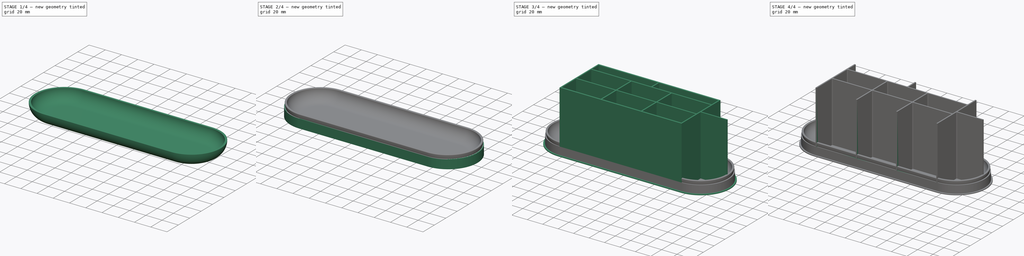
[diagram: build sequence overview — one tinted view per stage of 4, left to right]
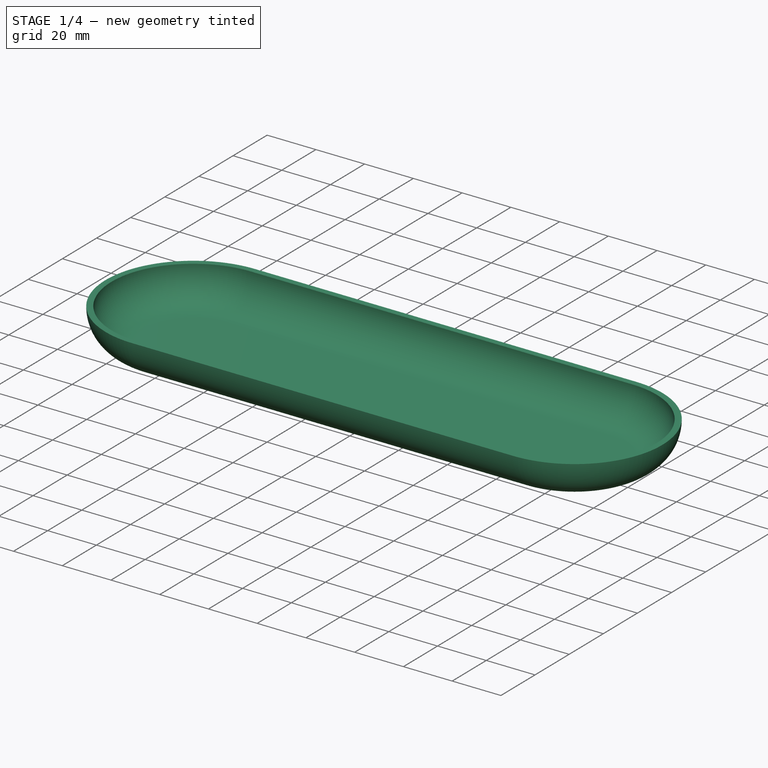
[diagram: stage 1 of 4 — iso view after this stage's code; geometry added in this stage tinted green]
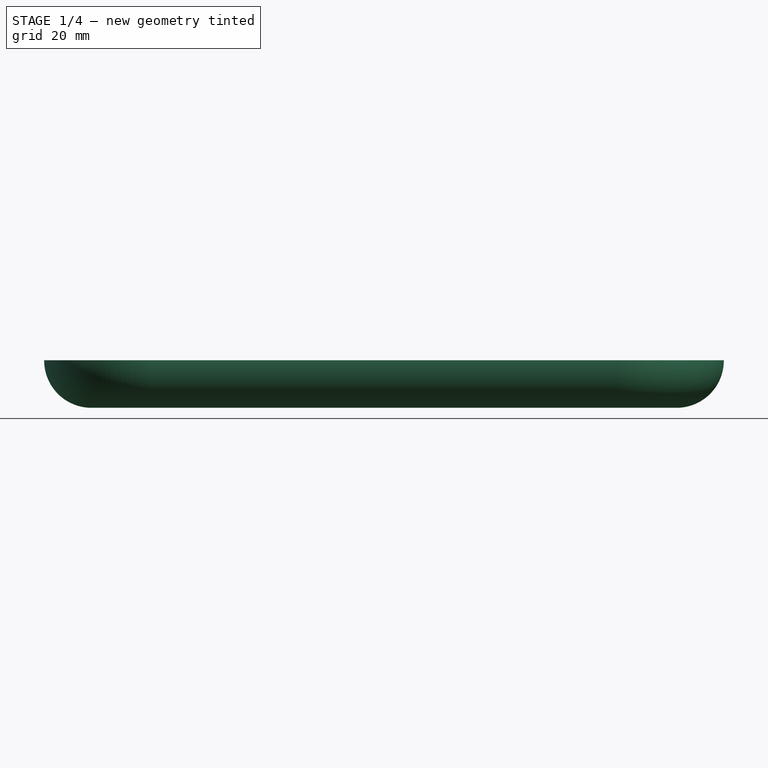
[diagram: stage 1 of 4 — front view after this stage's code; geometry added in this stage tinted green]
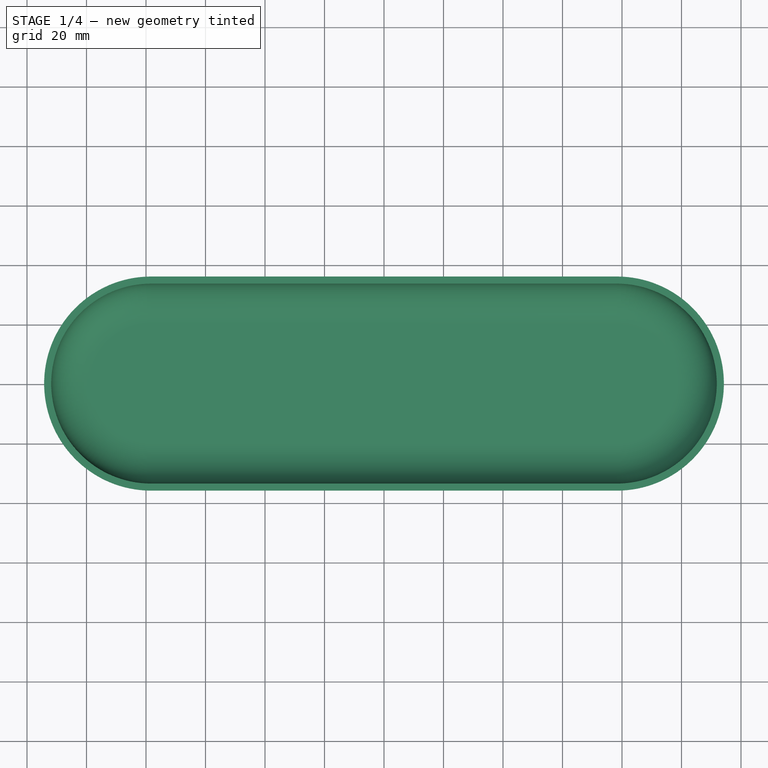
[diagram: stage 1 of 4 — top view after this stage's code; geometry added in this stage tinted green]
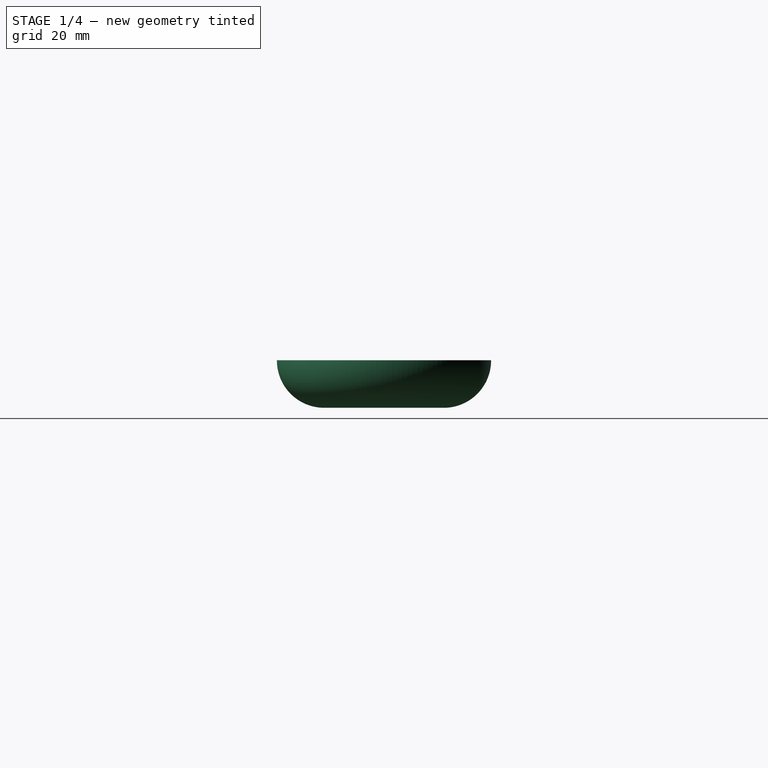
[diagram: stage 1 of 4 — right view after this stage's code; geometry added in this stage tinted green]
FCSTD DOCUMENT  (FreeCAD 1.1R42523 (Git))
Label: IKEA Skadis basket insert
License: All rights reserved
objects: Sketcher::SketchObject×8, PartDesign::Pad×5, PartDesign::Fillet×4, PartDesign::Pocket×3, App::Point×2, PartDesign::Body×2, App::VarSet×1, PartDesign::Thickness×1
note: 57 computed .brp shape members not serialized (recipe doc carries the construction recipe); baked Part::Feature solids carry a one-line shape summary decoded from their .brp

FEATURE [PartDesign::Body] Body  label="insert"
  AllowCompound = true
  Group = -> [Sketch,Sketch001,Pad,Pad001,Sketch002,Pad002,VarSet,Sketch003,Pad003,Sketch004,Pocket,Sketch005,Pocket001,Fillet,Fillet001]
  Origin = -> Origin
  Tip = -> Fillet001
FEATURE [App::Point] Origin003
  Role = Origin
FEATURE [Sketcher::SketchObject] Sketch006
  ArcFitTolerance = 1e-06
  AttachmentSupport = -> [Origin002]
  ExternalTypes = [0]
  FullyConstrained = true
  MakeInternals = false
  MapMode = 5
  sketch-geometry (5):
    g0: ArcOfCircle CenterX=-78.25 CenterY=-6e-16 CenterZ=0 NormalX=0 NormalY=0 NormalZ=1 AngleXU=0 Radius=36 StartAngle=1.5708 EndAngle=4.71239
    g1: ArcOfCircle CenterX=78.25 CenterY=6e-16 CenterZ=0 NormalX=0 NormalY=0 NormalZ=1 AngleXU=0 Radius=36 StartAngle=4.71239 EndAngle=7.85398
    g2: LineSegment StartX=-78.25 StartY=36 StartZ=0 EndX=78.25 EndY=36 EndZ=0
    g3: LineSegment StartX=-78.25 StartY=-36 StartZ=0 EndX=78.25 EndY=-36 EndZ=0
    g4: LineSegment [constr] StartX=-114.25 StartY=0 StartZ=0 EndX=114.25 EndY=0 EndZ=0
  constraints (13):
    c: Tangent(g0,g2) = 1.5708
    c: Tangent(g0,g3) = -1.5708
    c: Tangent(g1,g2) = 1.5708
    c: Tangent(g1,g3) = -1.5708
    c: Equal(g0,g1)
    c: Horizontal(g3)
    c: Diameter(g1) = 72
    c: PointOnObject(g4,g0)
    c: PointOnObject(g4,g1)
    c: Horizontal(g4)
    c: PointOnObject(g-1,g4)
    c: Symmetric(g0,g1,g-1)
    c: DistanceX(g4,g4) = 228.5
FEATURE [PartDesign::Pad] Pad004
  Direction = (0,0,1)
  Length = 16
  Length2 = 10
  Profile = -> Sketch006
  ReferenceAxis = -> Sketch006 [N_Axis]
  Refine = true
  Suppressed = false
  Type = 0
FEATURE [PartDesign::Fillet] Fillet002
  Base = -> Pad004 [Edge6]
  BaseFeature = -> Pad004
  Radius = 15.9
  Refine = true
  SupportTransform = false
  Suppressed = false
  UseAllEdges = false
FEATURE [PartDesign::Thickness] Thickness
  Base = -> Fillet002 [Face4]
  BaseFeature = -> Fillet002
  Intersection = false
  Join = 0
  Mode = 0
  Refine = true
  Reversed = true
  SupportTransform = false
  Suppressed = false
  Value = 2.4
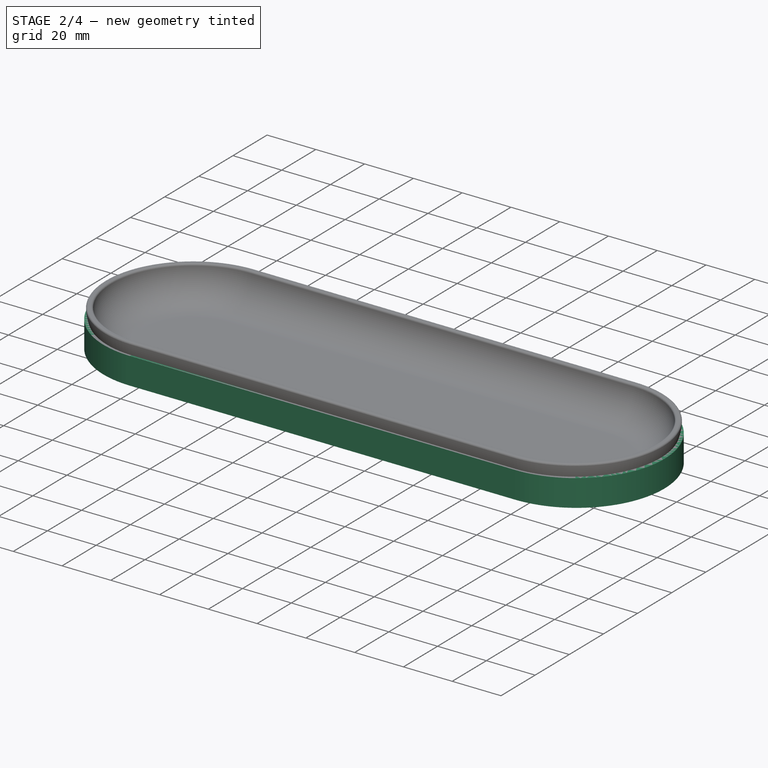
[diagram: stage 2 of 4 — iso view after this stage's code; geometry added in this stage tinted green]
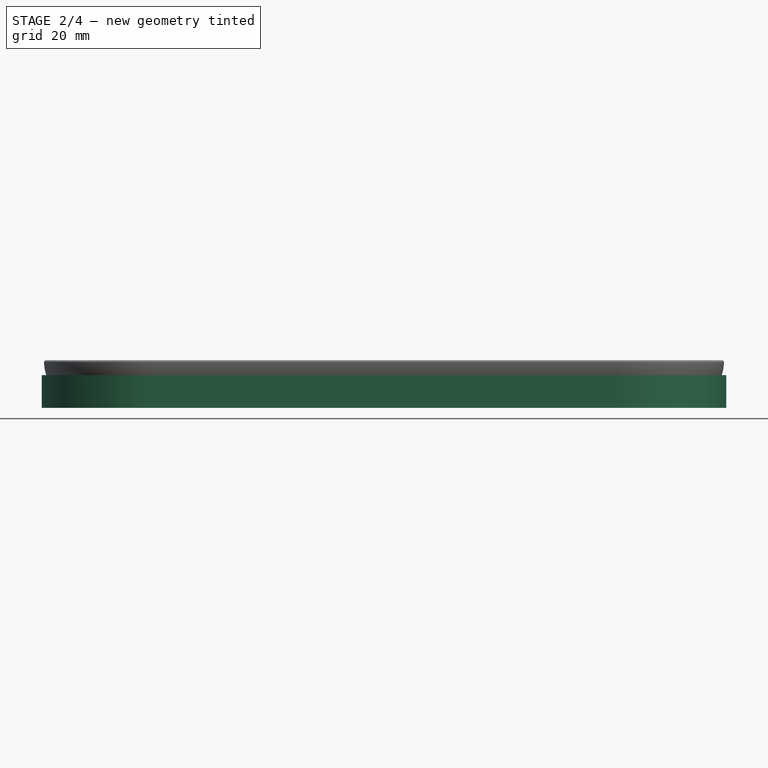
[diagram: stage 2 of 4 — front view after this stage's code; geometry added in this stage tinted green]
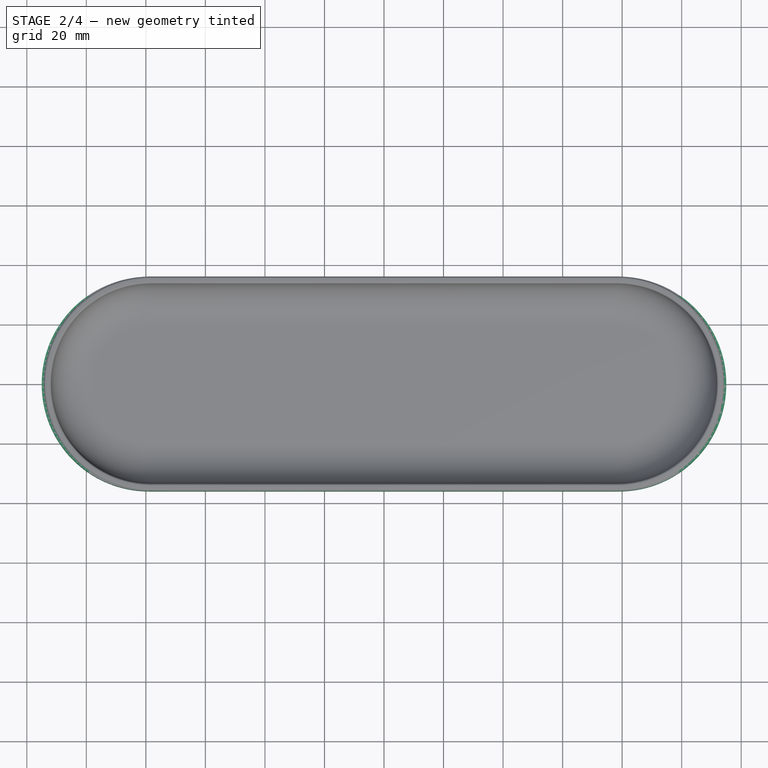
[diagram: stage 2 of 4 — top view after this stage's code; geometry added in this stage tinted green]
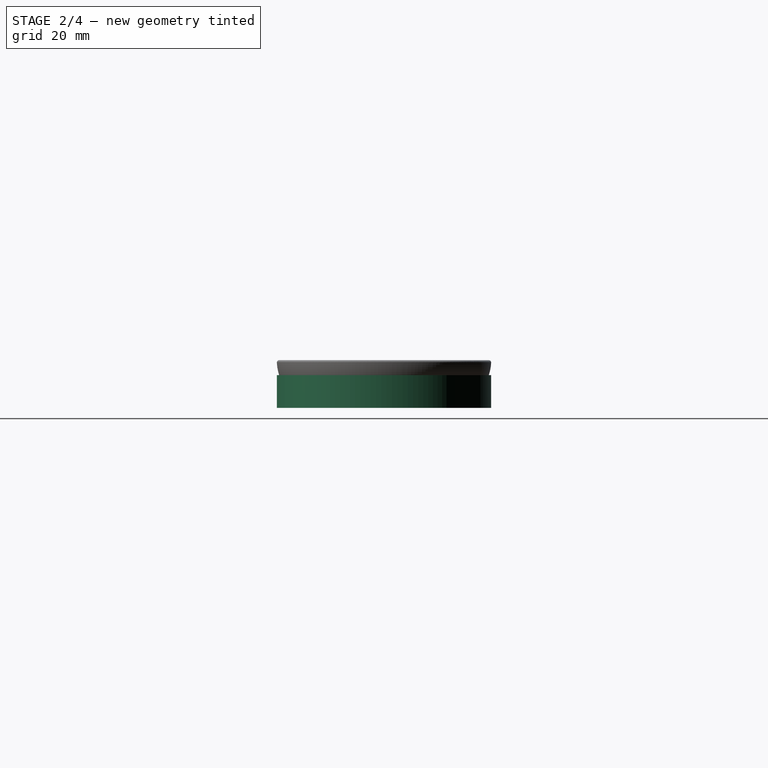
[diagram: stage 2 of 4 — right view after this stage's code; geometry added in this stage tinted green]
FEATURE [App::Point] Origin001
  Role = Origin
FEATURE [Sketcher::SketchObject] Sketch
  ArcFitTolerance = 1e-06
  AttachmentSupport = -> [Origin]
  ExternalTypes = [0]
  FullyConstrained = true
  MakeInternals = false
  MapMode = 5
  sketch-geometry (9):
    g0: ArcOfCircle CenterX=-79 CenterY=-1e-15 CenterZ=0 NormalX=0 NormalY=0 NormalZ=1 AngleXU=0 Radius=36 StartAngle=1.5708 EndAngle=4.71239
    g1: ArcOfCircle CenterX=79 CenterY=1e-15 CenterZ=0 NormalX=0 NormalY=0 NormalZ=1 AngleXU=0 Radius=36 StartAngle=4.71239 EndAngle=7.85398
    g2: LineSegment StartX=-79 StartY=36 StartZ=0 EndX=79 EndY=36 EndZ=0
    g3: LineSegment StartX=-79 StartY=-36 StartZ=0 EndX=79 EndY=-36 EndZ=0
    g4: LineSegment [constr] StartX=-115 StartY=0 StartZ=0 EndX=115 EndY=0 EndZ=0
    g5: LineSegment StartX=-79 StartY=-34 StartZ=0 EndX=79 EndY=-34 EndZ=0
    g6: ArcOfCircle CenterX=79 CenterY=1e-15 CenterZ=0 NormalX=0 NormalY=0 NormalZ=1 AngleXU=0 Radius=34 StartAngle=4.71239 EndAngle=7.85398
    g7: LineSegment StartX=-79 StartY=34 StartZ=0 EndX=79 EndY=34 EndZ=0
    g8: ArcOfCircle CenterX=-79 CenterY=-1e-15 CenterZ=0 NormalX=0 NormalY=0 NormalZ=1 AngleXU=0 Radius=34 StartAngle=1.5708 EndAngle=4.71239
  constraints (21):
    c: Tangent(g0,g2) = 1.5708
    c: Tangent(g0,g3) = -1.5708
    c: Tangent(g1,g2) = 1.5708
    c: Tangent(g1,g3) = -1.5708
    c: Equal(g0,g1)
    c: Horizontal(g3)
    c: Symmetric(g1,g0,g-1)
    c: Diameter(g1) = 72
    c: PointOnObject(g4,g0)
    c: PointOnObject(g4,g1)
    c: Horizontal(g4)
    c: PointOnObject(g-1,g4)
    c: DistanceX(g4,g4) = 230
    c: Tangent(g5,g6) = -1.5708
    c: Tangent(g5,g8) = -1.5708
    c: Tangent(g6,g7) = 1.5708
    c: Tangent(g7,g8) = 1.5708
    c: Horizontal(g7)
    c: Diameter(g6) = 68
    c: Coincident(g6,g1)
    c: Coincident(g0,g8)
FEATURE [PartDesign::Pad] Pad
  Direction = (0,0,1)
  Length = 11
  Length2 = 10
  Profile = -> Sketch
  ReferenceAxis = -> Sketch [N_Axis]
  Refine = true
  Suppressed = false
  Type = 0
  UseCustomVector = true
FEATURE [Sketcher::SketchObject] Sketch007
  ArcFitTolerance = 1e-06
  AttachmentSupport = -> [Origin002]
  ExternalTypes = [0]
  FullyConstrained = true
  MakeInternals = false
  MapMode = 5
  Placement = pos=(0,0,0) rot=(0.57735,0.57735,0.57735;2.0944rad)
  sketch-geometry (5):
    g0: LineSegment StartX=-50 StartY=0.5 StartZ=0 EndX=-50 EndY=-0.5 EndZ=0
    g1: LineSegment StartX=-50 StartY=-0.5 StartZ=0 EndX=50 EndY=-0.5 EndZ=0
    g2: LineSegment StartX=50 StartY=-0.5 StartZ=0 EndX=50 EndY=0.5 EndZ=0
    g3: LineSegment StartX=50 StartY=0.5 StartZ=0 EndX=-50 EndY=0.5 EndZ=0
    g4: GeomPoint [constr] X=0 Y=0 Z=0
  constraints (12):
    c: Coincident(g0,g1)
    c: Coincident(g1,g2)
    c: Coincident(g2,g3)
    c: Coincident(g3,g0)
    c: Vertical(g0)
    c: Vertical(g2)
    c: Horizontal(g1)
    c: Horizontal(g3)
    c: Symmetric(g2,g0,g4)
    c: Coincident(g4,g-1)
    c: DistanceY(g2,g2) = 1
    c: DistanceX(g1,g1) = 100
FEATURE [PartDesign::Pocket] Pocket002
  BaseFeature = -> Thickness
  Direction = (-1,0,0)
  Length = 5
  Length2 = 5
  Midplane = true
  Profile = -> Sketch007
  ReferenceAxis = -> Sketch007 [N_Axis]
  Refine = true
  Suppressed = false
  Type = 1
FEATURE [PartDesign::Fillet] Fillet003
  Base = -> Pocket002 [Face4]
  BaseFeature = -> Pocket002
  Radius = 0.75
  Refine = true
  SupportTransform = false
  Suppressed = false
  UseAllEdges = false
FEATURE [PartDesign::Body] Body001  label="bottom"
  AllowCompound = true
  Group = -> [Sketch006,Pad004,Fillet002,Thickness,Sketch007,Pocket002,Fillet003]
  Origin = -> Origin002
  Tip = -> Fillet003
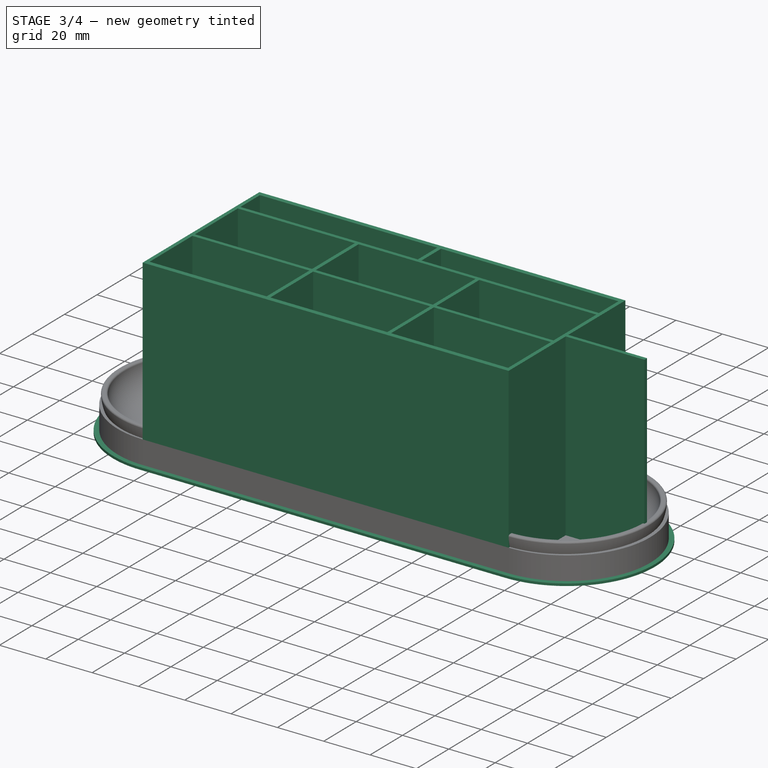
[diagram: stage 3 of 4 — iso view after this stage's code; geometry added in this stage tinted green]
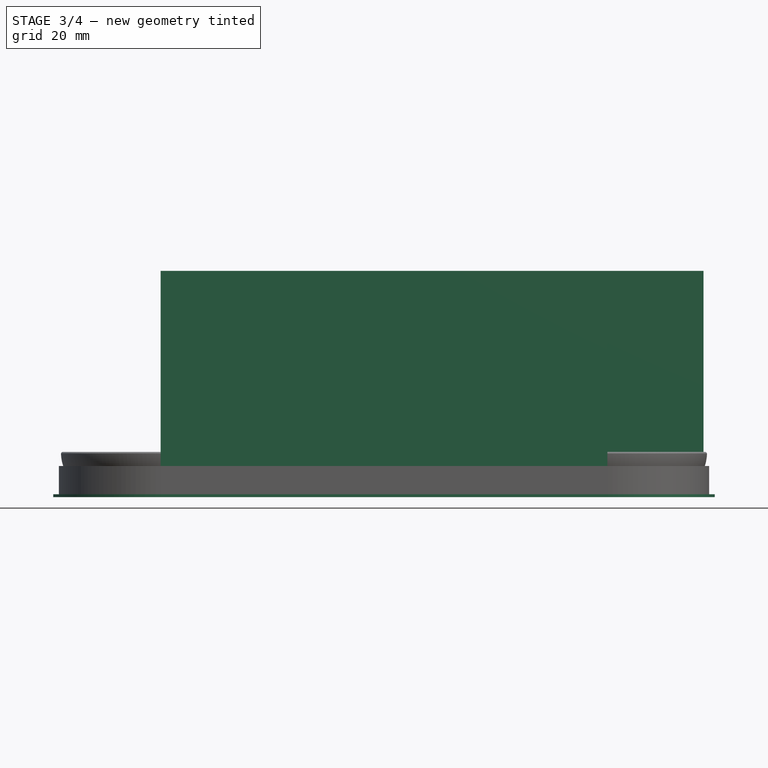
[diagram: stage 3 of 4 — front view after this stage's code; geometry added in this stage tinted green]
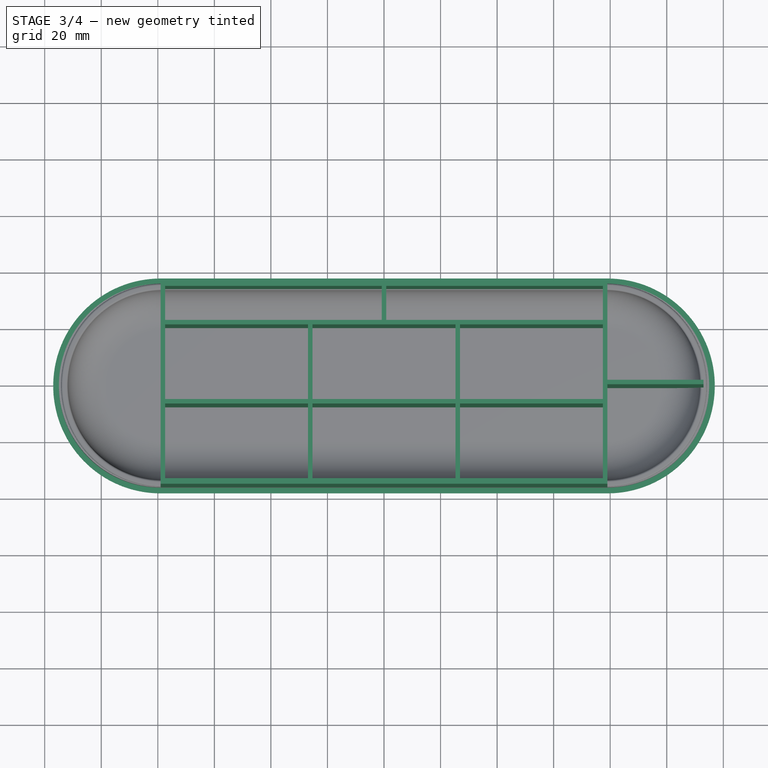
[diagram: stage 3 of 4 — top view after this stage's code; geometry added in this stage tinted green]
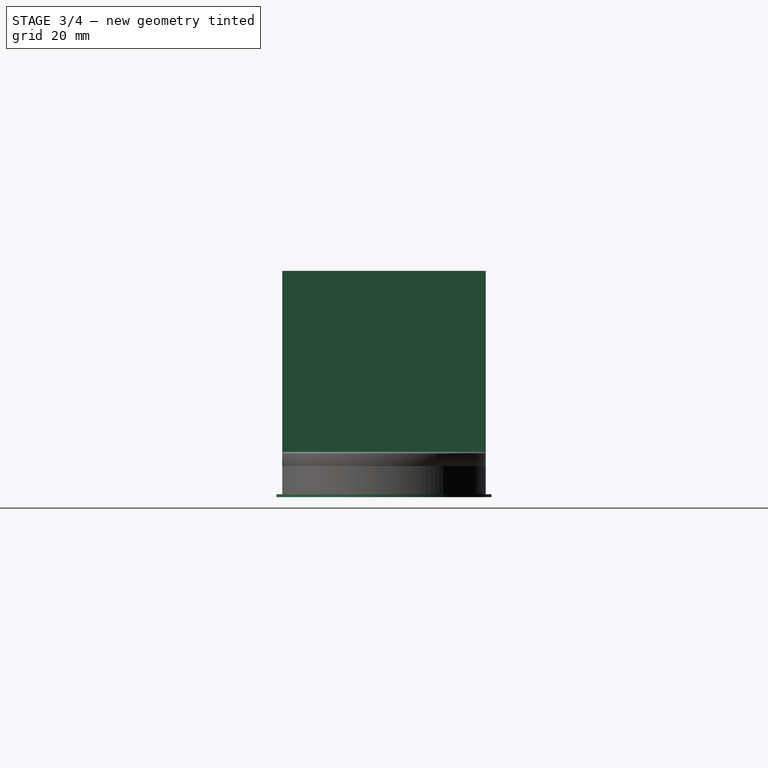
[diagram: stage 3 of 4 — right view after this stage's code; geometry added in this stage tinted green]
FEATURE [Sketcher::SketchObject] Sketch001
  ArcFitTolerance = 1e-06
  AttachmentSupport = -> [Origin]
  ExternalGeometry = -> [Pad]
  ExternalTypes = [0,0,0,0]
  FullyConstrained = false
  MakeInternals = false
  MapMode = 5
  expr: Constraints[2] = Sketch.Constraints[12]
  sketch-geometry (5):
    g0: LineSegment [constr] StartX=-115 StartY=0 StartZ=0 EndX=115 EndY=0 EndZ=0
    g1: ArcOfCircle CenterX=-79 CenterY=-1e-15 CenterZ=0 NormalX=0 NormalY=0 NormalZ=1 AngleXU=0 Radius=38 StartAngle=1.5708 EndAngle=4.71239
    g2: LineSegment StartX=-79 StartY=-38 StartZ=0 EndX=79 EndY=-38 EndZ=0
    g3: ArcOfCircle CenterX=79 CenterY=1e-15 CenterZ=0 NormalX=0 NormalY=0 NormalZ=1 AngleXU=0 Radius=38 StartAngle=4.71239 EndAngle=7.85398
    g4: LineSegment StartX=-79 StartY=38 StartZ=0 EndX=79 EndY=38 EndZ=0
  constraints (11):
    c: Horizontal(g0)
    c: PointOnObject(g-1,g0)
    c: DistanceX(g0,g0) = 230
    c: Tangent(g1,g2) = -1.5708
    c: Tangent(g1,g4) = 1.5708
    c: Tangent(g2,g3) = -1.5708
    c: Tangent(g3,g4) = 1.5708
    c: Horizontal(g4)
    c: Diameter(g3) = 76
    c: Coincident(g3,g-6)
    c: Coincident(g1,g-4)
FEATURE [PartDesign::Pad] Pad001
  BaseFeature = -> Pad
  Direction = (0,0,1)
  Length = 1
  Length2 = 10
  Profile = -> Sketch001
  ReferenceAxis = -> Sketch001 [N_Axis]
  Refine = true
  Suppressed = false
  Type = 0
FEATURE [Sketcher::SketchObject] Sketch002
  ArcFitTolerance = 1e-06
  AttachmentSupport = -> [Origin]
  ExternalGeometry = -> [Sketch]
  ExternalTypes = [0,0,0]
  FullyConstrained = true
  MakeInternals = false
  MapMode = 5
  sketch-geometry (4):
    g0: LineSegment StartX=-79 StartY=-36 StartZ=0 EndX=79 EndY=-36 EndZ=0
    g1: LineSegment StartX=79 StartY=36 StartZ=0 EndX=-79 EndY=36 EndZ=0
    g2: LineSegment StartX=-79 StartY=36 StartZ=0 EndX=-79 EndY=-36 EndZ=0
    g3: LineSegment StartX=79 StartY=36 StartZ=0 EndX=79 EndY=-36 EndZ=0
  constraints (8):
    c: Coincident(g1,g-3)
    c: Coincident(g1,g-3)
    c: Coincident(g0,g-4)
    c: Coincident(g0,g-4)
    c: Coincident(g2,g1)
    c: Coincident(g2,g0)
    c: Coincident(g3,g1)
    c: Coincident(g3,g0)
FEATURE [PartDesign::Pad] Pad002
  BaseFeature = -> Pad001
  Direction = (0,0,1)
  Length = 80
  Length2 = 10
  Profile = -> Sketch002
  ReferenceAxis = -> Sketch002 [N_Axis]
  Refine = true
  Suppressed = false
  Type = 0
  expr: Length = <<dim>>.height
FEATURE [App::VarSet] VarSet  label="dim"
  height = 80
  wall = 1.6
FEATURE [Sketcher::SketchObject] Sketch003
  ArcFitTolerance = 1e-06
  AttachmentSupport = -> [Origin]
  ExternalGeometry = -> [Pad002,Pad]
  ExternalTypes = [0,0,0,0]
  FullyConstrained = false
  MakeInternals = false
  MapMode = 5
  expr: Constraints[6] = <<dim>>.wall
  sketch-geometry (4):
    g0: LineSegment StartX=79 StartY=0.8 StartZ=0 EndX=79 EndY=-0.8 EndZ=0
    g1: LineSegment StartX=79 StartY=-0.8 StartZ=0 EndX=113 EndY=-0.8 EndZ=0
    g2: LineSegment StartX=113 StartY=-0.8 StartZ=0 EndX=113 EndY=0.8 EndZ=0
    g3: LineSegment StartX=113 StartY=0.8 StartZ=0 EndX=79 EndY=0.8 EndZ=0
  constraints (7):
    c: Vertical(g0)
    c: Vertical(g2)
    c: Horizontal(g1)
    c: Horizontal(g3)
    c: Tangent(g2,g-4)
    c: Symmetric(g0,g0,g-4)
    c: DistanceY(g2,g2) = 1.6
FEATURE [PartDesign::Pad] Pad003
  BaseFeature = -> Pad002
  Direction = (0,0,1)
  Length = 80
  Length2 = 10
  Profile = -> Sketch003
  ReferenceAxis = -> Sketch003 [N_Axis]
  Refine = true
  Suppressed = false
  Type = 0
  expr: Length = <<dim>>.height
FEATURE [Sketcher::SketchObject] Sketch004
  ArcFitTolerance = 1e-06
  AttachmentSupport = -> [Origin]
  ExternalGeometry = -> [Pad003,Sketch002]
  ExternalTypes = [0,0,0]
  FullyConstrained = true
  MakeInternals = false
  MapMode = 5
  expr: Constraints[100] = <<dim>>.wall
  expr: Constraints[104] = <<dim>>.wall
  expr: Constraints[105] = <<dim>>.wall
  expr: Constraints[91] = <<dim>>.wall
  sketch-geometry (37):
    g0: LineSegment StartX=-77.4 StartY=-7.6 StartZ=0 EndX=-77.4 EndY=-34 EndZ=0
    g1: LineSegment StartX=-77.4 StartY=-34 StartZ=0 EndX=-26.8667 EndY=-34 EndZ=0
    g2: LineSegment StartX=-26.8667 StartY=-34 StartZ=0 EndX=-26.8667 EndY=-7.6 EndZ=0
    g3: LineSegment StartX=-26.8667 StartY=-7.6 StartZ=0 EndX=-77.4 EndY=-7.6 EndZ=0
    g4: LineSegment StartX=-25.2667 StartY=-7.6 StartZ=0 EndX=-25.2667 EndY=-34 EndZ=0
    g5: LineSegment StartX=-25.2667 StartY=-34 StartZ=0 EndX=25.2667 EndY=-34 EndZ=0
    g6: LineSegment StartX=25.2667 StartY=-34 StartZ=0 EndX=25.2667 EndY=-7.6 EndZ=0
    g7: LineSegment StartX=25.2667 StartY=-7.6 StartZ=0 EndX=-25.2667 EndY=-7.6 EndZ=0
    g8: LineSegment StartX=26.8667 StartY=-7.6 StartZ=0 EndX=26.8667 EndY=-34 EndZ=0
    g9: LineSegment StartX=26.8667 StartY=-34 StartZ=0 EndX=77.4 EndY=-34 EndZ=0
    g10: LineSegment StartX=77.4 StartY=-34 StartZ=0 EndX=77.4 EndY=-7.6 EndZ=0
    g11: LineSegment StartX=77.4 StartY=-7.6 StartZ=0 EndX=26.8667 EndY=-7.6 EndZ=0
    g12: LineSegment StartX=-77.4 StartY=20.4 StartZ=0 EndX=-77.4 EndY=-6 EndZ=0
    g13: LineSegment StartX=-77.4 StartY=-6 StartZ=0 EndX=-26.8667 EndY=-6 EndZ=0
    g14: LineSegment StartX=-26.8667 StartY=-6 StartZ=0 EndX=-26.8667 EndY=20.4 EndZ=0
    g15: LineSegment StartX=-26.8667 StartY=20.4 StartZ=0 EndX=-77.4 EndY=20.4 EndZ=0
    g16: LineSegment StartX=-25.2667 StartY=20.4 StartZ=0 EndX=-25.2667 EndY=-6 EndZ=0
    g17: LineSegment StartX=-25.2667 StartY=-6 StartZ=0 EndX=25.2667 EndY=-6 EndZ=0
    g18: LineSegment StartX=25.2667 StartY=-6 StartZ=0 EndX=25.2667 EndY=20.4 EndZ=0
    g19: LineSegment StartX=25.2667 StartY=20.4 StartZ=0 EndX=-25.2667 EndY=20.4 EndZ=0
    g20: LineSegment StartX=26.8667 StartY=20.4 StartZ=0 EndX=26.8667 EndY=-6 EndZ=0
    g21: LineSegment StartX=26.8667 StartY=-6 StartZ=0 EndX=77.4 EndY=-6 EndZ=0
    g22: LineSegment StartX=77.4 StartY=-6 StartZ=0 EndX=77.4 EndY=20.4 EndZ=0
    g23: LineSegment StartX=77.4 StartY=20.4 StartZ=0 EndX=26.8667 EndY=20.4 EndZ=0
    g24: LineSegment StartX=-77.4 StartY=34 StartZ=0 EndX=-77.4 EndY=22 EndZ=0
    g25: LineSegment StartX=-77.4 StartY=22 StartZ=0 EndX=-0.8 EndY=22 EndZ=0
    g26: LineSegment StartX=-0.8 StartY=22 StartZ=0 EndX=-0.8 EndY=34 EndZ=0
    g27: LineSegment StartX=0.8 StartY=34 StartZ=0 EndX=0.8 EndY=22 EndZ=0
    g28: LineSegment StartX=0.8 StartY=22 StartZ=0 EndX=77.4 EndY=22 EndZ=0
    g29: LineSegment StartX=77.4 StartY=22 StartZ=0 EndX=77.4 EndY=34 EndZ=0
    g30: LineSegment StartX=77.4 StartY=34 StartZ=0 EndX=0.8 EndY=34 EndZ=0
    g31: LineSegment [constr] StartX=-0.8 StartY=34 StartZ=0 EndX=0.8 EndY=34 EndZ=0
    g32: LineSegment [constr] StartX=-26.8667 StartY=20.4 StartZ=0 EndX=-25.2667 EndY=20.4 EndZ=0
    g33: LineSegment [constr] StartX=25.2667 StartY=20.4 StartZ=0 EndX=26.8667 EndY=20.4 EndZ=0
    g34: LineSegment [constr] StartX=77.4 StartY=-6 StartZ=0 EndX=77.4 EndY=-7.6 EndZ=0
    g35: LineSegment [constr] StartX=77.4 StartY=22 StartZ=0 EndX=77.4 EndY=20.4 EndZ=0
    g36: LineSegment StartX=-77.4 StartY=34 StartZ=0 EndX=-0.8 EndY=34 EndZ=0
  constraints (106):
    c: Coincident(g0,g1)
    c: Coincident(g1,g2)
    c: Coincident(g2,g3)
    c: Coincident(g3,g0)
    c: Vertical(g0)
    c: Vertical(g2)
    c: Horizontal(g1)
    c: Horizontal(g3)
    c: Coincident(g4,g5)
    c: Coincident(g5,g6)
    c: Coincident(g6,g7)
    c: Coincident(g7,g4)
    c: Vertical(g4)
    c: Vertical(g6)
    c: Horizontal(g5)
    c: Horizontal(g7)
    c: Coincident(g8,g9)
    c: Coincident(g9,g10)
    c: Coincident(g10,g11)
    c: Coincident(g11,g8)
    c: Vertical(g8)
    c: Vertical(g10)
    c: Horizontal(g9)
    c: Horizontal(g11)
    c: Coincident(g12,g13)
    c: Coincident(g13,g14)
    c: Coincident(g14,g15)
    c: Coincident(g15,g12)
    c: Vertical(g12)
    c: Vertical(g14)
    c: Horizontal(g13)
    c: Horizontal(g15)
    c: Coincident(g16,g17)
    c: Coincident(g17,g18)
    c: Coincident(g18,g19)
    c: Coincident(g19,g16)
    c: Vertical(g16)
    c: Vertical(g18)
    c: Horizontal(g17)
    c: Horizontal(g19)
    c: Coincident(g20,g21)
    c: Coincident(g21,g22)
    c: Coincident(g22,g23)
    c: Coincident(g23,g20)
    c: Vertical(g20)
    c: Vertical(g22)
    c: Horizontal(g21)
    c: Horizontal(g23)
    c: Coincident(g24,g25)
    c: Coincident(g25,g26)
    c: Vertical(g24)
    c: Vertical(g26)
    c: Horizontal(g25)
    c: Coincident(g27,g28)
    c: Coincident(g28,g29)
    c: Coincident(g29,g30)
    c: Coincident(g30,g27)
    c: Vertical(g27)
    c: Vertical(g29)
    c: Horizontal(g28)
    c: Horizontal(g30)
    c: Horizontal(g-4,g24)
    c: Horizontal(g24,g27)
    c: Horizontal(g-4,g0)
    c: Horizontal(g0,g4)
    c: Horizontal(g4,g8)
    c: Equal(g0,g12)
    c: Equal(g12,g16)
    c: Equal(g16,g4)
    c: Equal(g4,g8)
    c: Equal(g8,g20)
    c: Horizontal(g12,g16)
    c: Horizontal(g16,g20)
    c: Horizontal(g24,g27)
    c: Coincident(g31,g26)
    c: Coincident(g31,g27)
    c: Vertical(g28,g22)
    c: Vertical(g22,g10)
    c: Vertical(g24,g12)
    c: Vertical(g12,g0)
    c: Vertical(g16,g4)
    c: Vertical(g17,g6)
    c: Coincident(g32,g14)
    c: Coincident(g32,g16)
    c: Coincident(g33,g18)
    c: Coincident(g33,g20)
    c: Coincident(g34,g21)
    c: Coincident(g34,g10)
    c: Equal(g32,g31)
    c: Equal(g31,g33)
    c: Equal(g31,g34)
    c: DistanceX(g31,g31) = 1.6
    c: Equal(g3,g15)
    c: Equal(g15,g19)
    c: Equal(g7,g23)
    c: Equal(g21,g11)
    c: Coincident(g35,g28)
    c: Coincident(g35,g22)
    c: Distance(g29,g29) = 12
    c: Equal(g25,g28)
    c: DistanceX(g-4,g24) = 1.6
    c: Coincident(g36,g24)
    c: Coincident(g36,g26)
    c: Horizontal(g36)
    c: DistanceX(g29,g-5) = 1.6
    c: DistanceY(g35,g35) = 1.6
FEATURE [PartDesign::Pocket] Pocket
  BaseFeature = -> Pad003
  Direction = (0,0,-1)
  Length = 5
  Length2 = 5
  Midplane = true
  Profile = -> Sketch004
  ReferenceAxis = -> Sketch004 [N_Axis]
  Refine = true
  Suppressed = false
  Type = 1
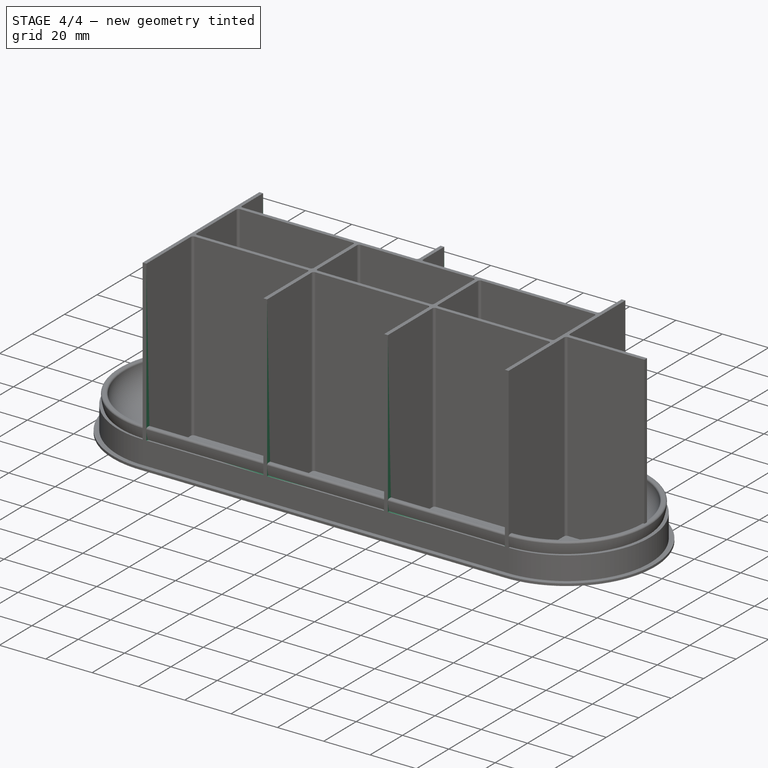
[diagram: stage 4 of 4 — iso view after this stage's code; geometry added in this stage tinted green]
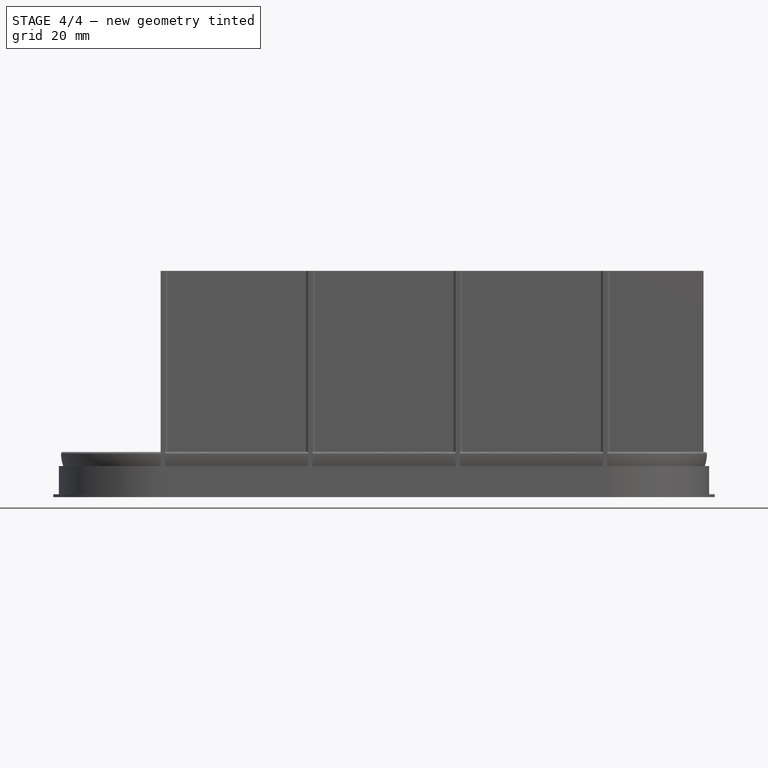
[diagram: stage 4 of 4 — front view after this stage's code; geometry added in this stage tinted green]
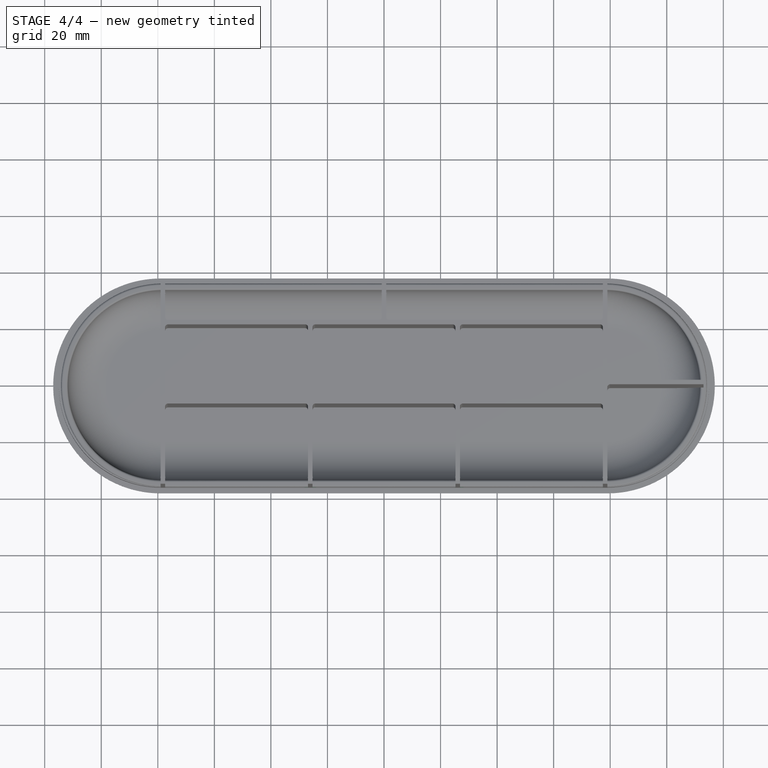
[diagram: stage 4 of 4 — top view after this stage's code; geometry added in this stage tinted green]
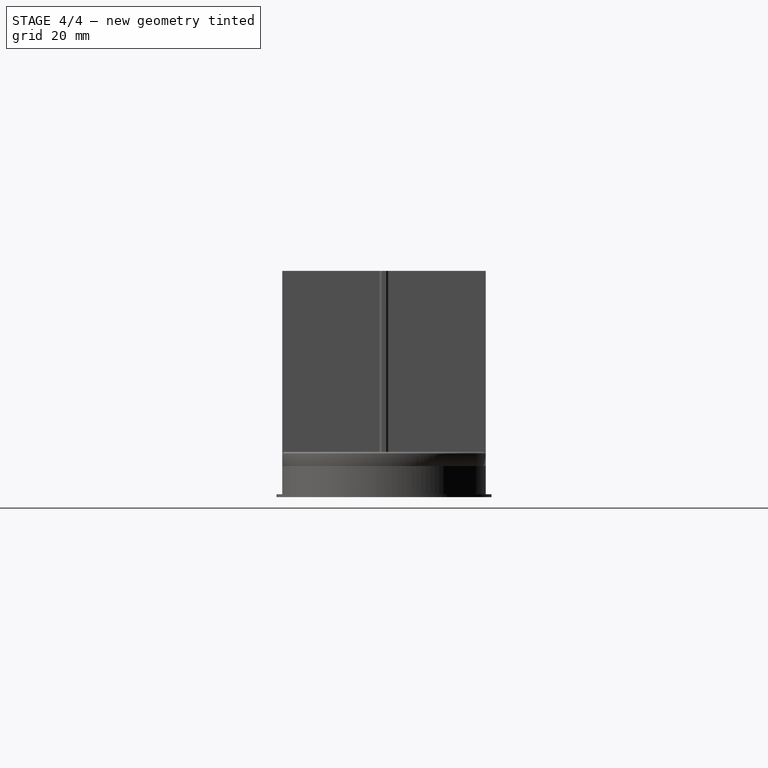
[diagram: stage 4 of 4 — right view after this stage's code; geometry added in this stage tinted green]
FEATURE [Sketcher::SketchObject] Sketch005
  ArcFitTolerance = 1e-06
  AttachmentSupport = -> [Pocket]
  ExternalGeometry = -> [Pocket]
  ExternalTypes = [0,0,0,0,0]
  FullyConstrained = true
  MakeInternals = false
  MapMode = 5
  Placement = pos=(0,0,80) rot=(0,0,1;0rad)
  sketch-geometry (20):
    g0: LineSegment StartX=-77.4 StartY=34 StartZ=0 EndX=-0.8 EndY=34 EndZ=0
    g1: LineSegment StartX=-0.8 StartY=34 StartZ=0 EndX=-0.8 EndY=44 EndZ=0
    g2: LineSegment StartX=-0.8 StartY=44 StartZ=0 EndX=-77.4 EndY=44 EndZ=0
    g3: LineSegment StartX=-77.4 StartY=44 StartZ=0 EndX=-77.4 EndY=34 EndZ=0
    g4: LineSegment StartX=0.8 StartY=34 StartZ=0 EndX=77.4 EndY=34 EndZ=0
    g5: LineSegment StartX=77.4 StartY=34 StartZ=0 EndX=77.4 EndY=44 EndZ=0
    g6: LineSegment StartX=77.4 StartY=44 StartZ=0 EndX=0.8 EndY=44 EndZ=0
    g7: LineSegment StartX=0.8 StartY=44 StartZ=0 EndX=0.8 EndY=34 EndZ=0
    g8: LineSegment StartX=-77.4 StartY=-34 StartZ=0 EndX=-77.4 EndY=-44 EndZ=0
    g9: LineSegment StartX=-77.4 StartY=-44 StartZ=0 EndX=-26.8667 EndY=-44 EndZ=0
    g10: LineSegment StartX=-26.8667 StartY=-44 StartZ=0 EndX=-26.8667 EndY=-34 EndZ=0
    g11: LineSegment StartX=-26.8667 StartY=-34 StartZ=0 EndX=-77.4 EndY=-34 EndZ=0
    g12: LineSegment StartX=-25.2667 StartY=-34 StartZ=0 EndX=-25.2667 EndY=-44 EndZ=0
    g13: LineSegment StartX=-25.2667 StartY=-44 StartZ=0 EndX=25.2667 EndY=-44 EndZ=0
    g14: LineSegment StartX=25.2667 StartY=-44 StartZ=0 EndX=25.2667 EndY=-34 EndZ=0
    g15: LineSegment StartX=25.2667 StartY=-34 StartZ=0 EndX=-25.2667 EndY=-34 EndZ=0
    g16: LineSegment StartX=26.8667 StartY=-34 StartZ=0 EndX=26.8667 EndY=-44 EndZ=0
    g17: LineSegment StartX=26.8667 StartY=-44 StartZ=0 EndX=77.4 EndY=-44 EndZ=0
    g18: LineSegment StartX=77.4 StartY=-44 StartZ=0 EndX=77.4 EndY=-34 EndZ=0
    g19: LineSegment StartX=77.4 StartY=-34 StartZ=0 EndX=26.8667 EndY=-34 EndZ=0
  constraints (50):
    c: Coincident(g0,g1)
    c: Coincident(g1,g2)
    c: Coincident(g2,g3)
    c: Coincident(g3,g0)
    c: Horizontal(g2)
    c: Vertical(g1)
    c: Vertical(g3)
    c: Coincident(g0,g-3)
    c: Coincident(g4,g5)
    c: Coincident(g5,g6)
    c: Coincident(g6,g7)
    c: Coincident(g7,g4)
    c: Horizontal(g6)
    c: Vertical(g5)
    c: Vertical(g7)
    c: Coincident(g4,g-4)
    c: Coincident(g8,g9)
    c: Coincident(g9,g10)
    c: Coincident(g10,g11)
    c: Coincident(g11,g8)
    c: Vertical(g8)
    c: Vertical(g10)
    c: Horizontal(g9)
    c: Coincident(g8,g-5)
    c: Coincident(g12,g13)
    c: Coincident(g13,g14)
    c: Coincident(g14,g15)
    c: Coincident(g15,g12)
    c: Vertical(g12)
    c: Vertical(g14)
    c: Horizontal(g13)
    c: Coincident(g12,g-6)
    c: Coincident(g16,g17)
    c: Coincident(g17,g18)
    c: Coincident(g18,g19)
    c: Coincident(g19,g16)
    c: Vertical(g16)
    c: Vertical(g18)
    c: Horizontal(g17)
    c: Coincident(g16,g-7)
    c: Coincident(g18,g-7)
    c: Coincident(g14,g-6)
    c: Coincident(g10,g-5)
    c: Coincident(g0,g-3)
    c: Coincident(g4,g-4)
    c: Equal(g3,g5)
    c: Equal(g5,g18)
    c: Equal(g18,g14)
    c: Equal(g14,g10)
    c: Distance(g18,g18) = 10
FEATURE [PartDesign::Pocket] Pocket001
  BaseFeature = -> Pocket
  Direction = (0,0,-1)
  Length = 0
  Length2 = 5
  Profile = -> Sketch005
  ReferenceAxis = -> Sketch005 [N_Axis]
  Refine = true
  Suppressed = false
  Type = 3
  UpToFace = -> Pocket [Face54]
FEATURE [PartDesign::Fillet] Fillet
  Base = -> Pocket001 [Edge125,Edge134,Edge113,Edge62,Edge107,Edge71,Edge77,Edge83,Edge127,Edge84,Edge78,Edge72,Edge57,Edge105,Edge112,Edge135]
  BaseFeature = -> Pocket001
  Radius = 2
  Refine = true
  SupportTransform = false
  Suppressed = false
  UseAllEdges = false
FEATURE [PartDesign::Fillet] Fillet001
  Base = -> Fillet [Edge103,Edge146,Edge128,Edge95,Edge110,Edge87,Edge62,Edge164,Edge86,Edge94,Edge102,Edge212,Edge180,Edge89,Edge118,Edge97,Edge136,Edge154,Edge105,Edge107,Edge220,Edge99,Edge188,Edge91]
  BaseFeature = -> Fillet
  Radius = 1
  Refine = true
  SupportTransform = false
  Suppressed = false
  UseAllEdges = false
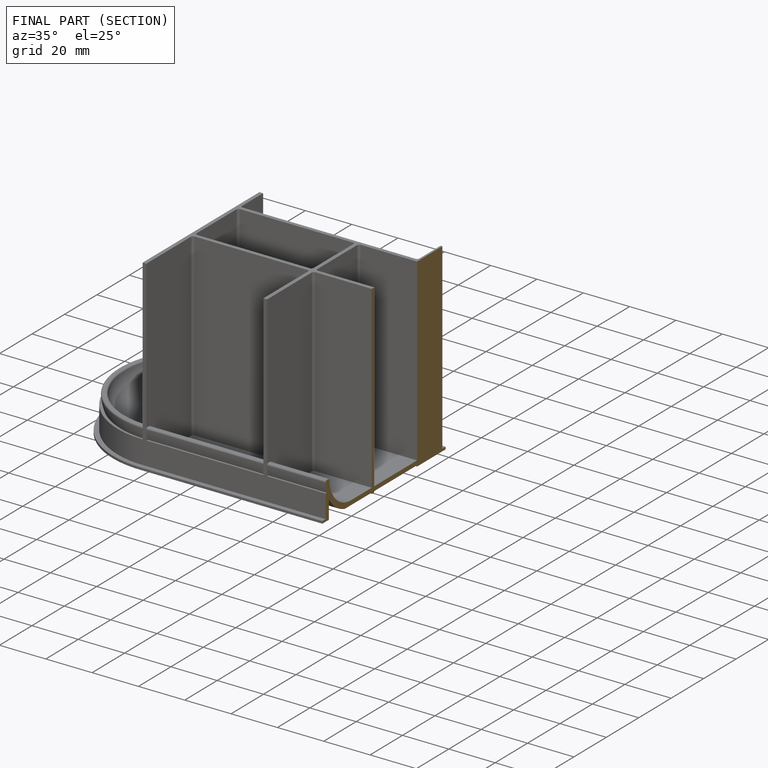
[diagram: finished part — half-section view (interior)]
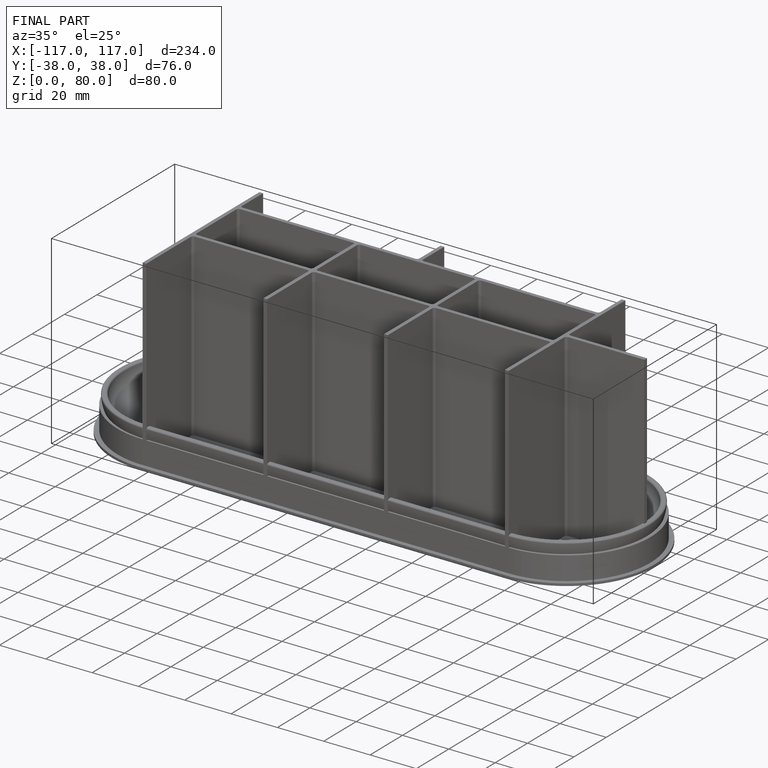
[diagram: finished part — iso view with bounding-box wireframe]
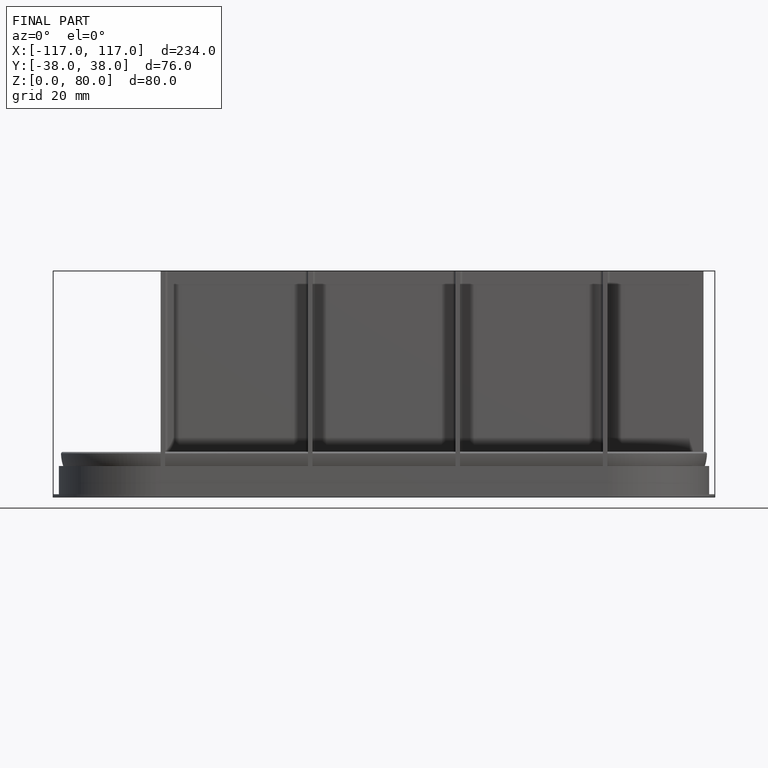
[diagram: finished part — front view with bounding-box wireframe]
